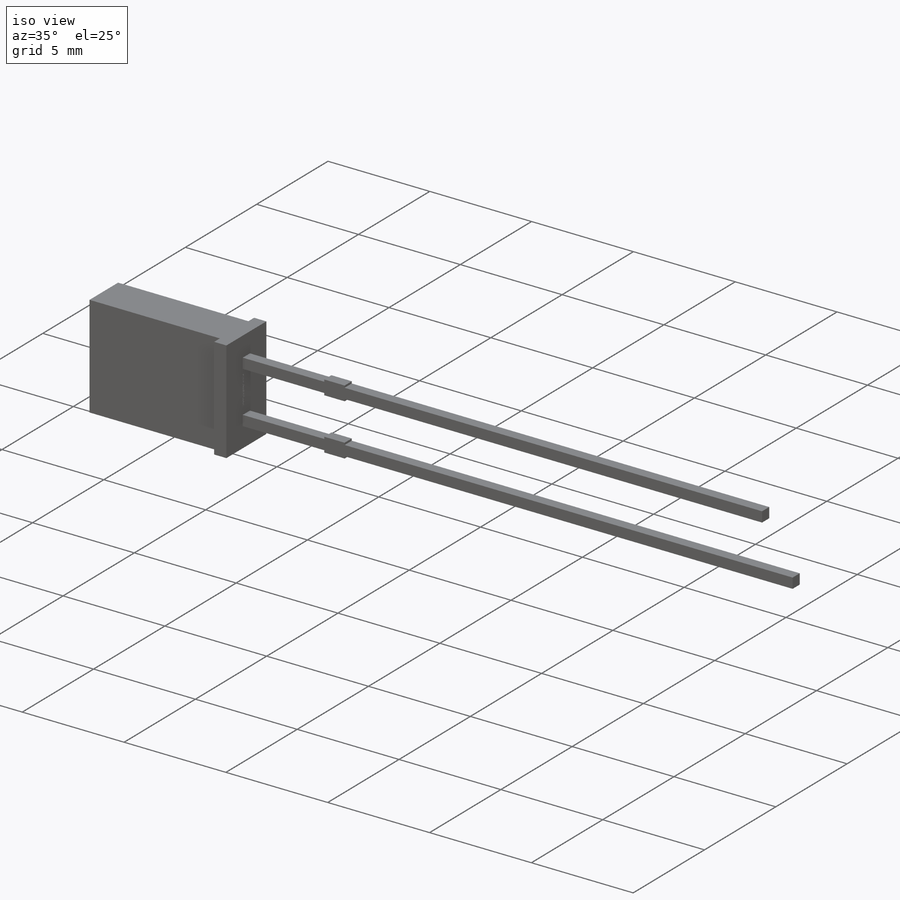
[diagram: iso view]
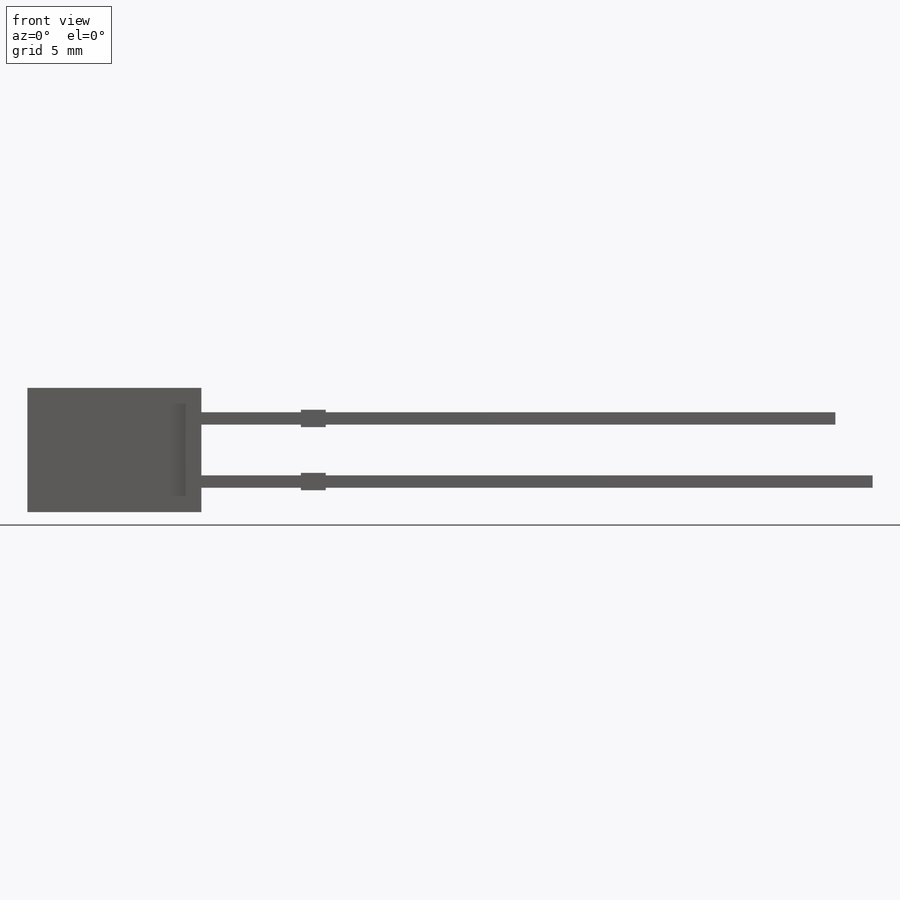
[diagram: front view]
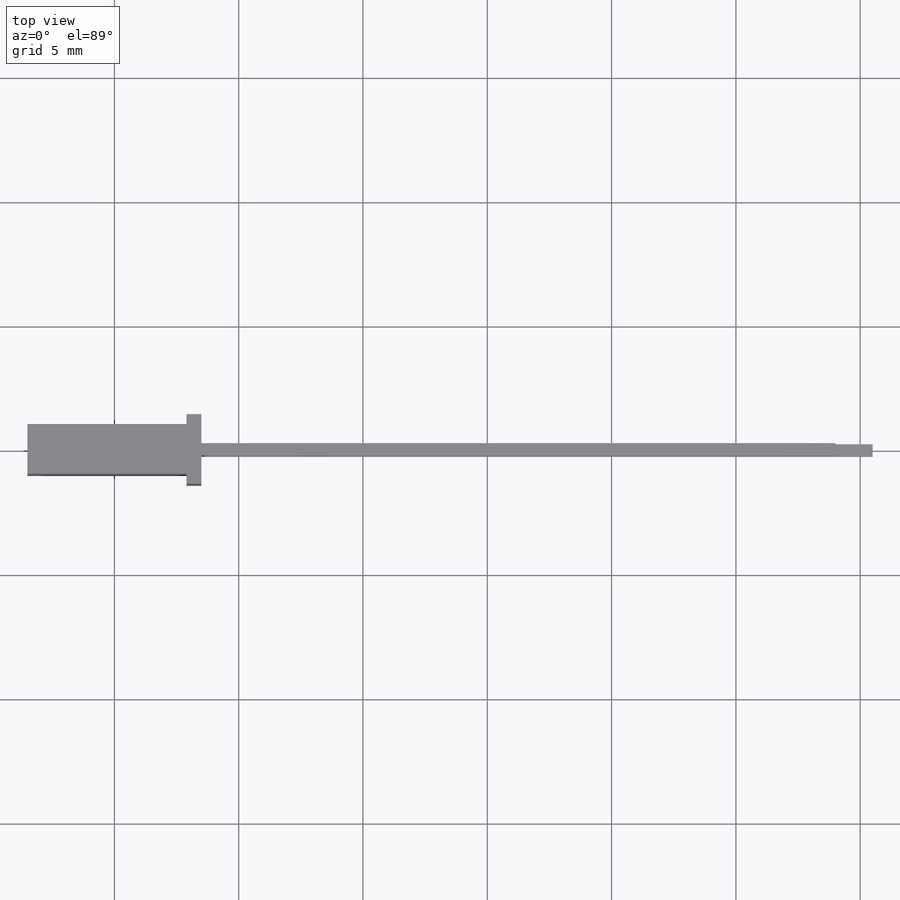
[diagram: top view]
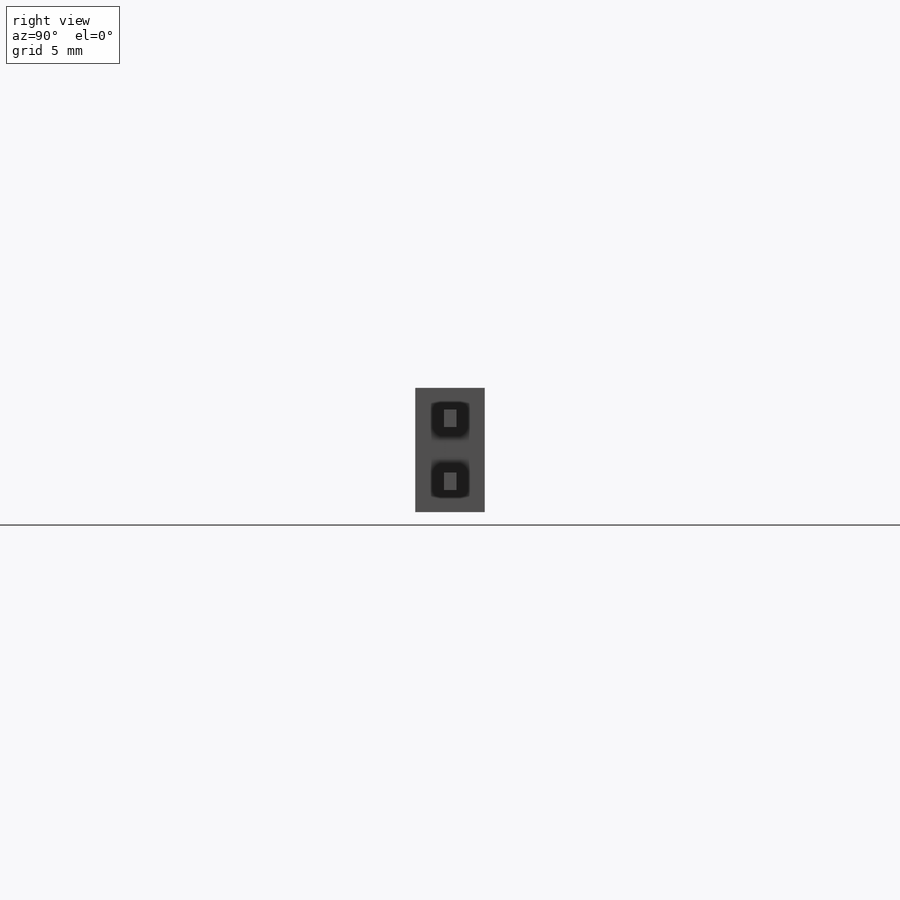
[diagram: right view]
SOLIDWORKS PART (.sldprt)
format: sldprt  version: not decoded by parser v0  size: 677,376 bytes
history: native  units: mm
features: sketch x6, extrude x5, material x1, cut_extrude x1 (+12 scaffold rows collapsed)
feature tree (25):
  scaffold x12  (default folders/planes/origin — collapsed)
  material  "Material <not specified>"
  sketch  "Sketch1"  dims[c1.D1=5.0mm c1.D2=7.0mm c1.D3=2.54mm c1.D4=27.0mm c1.D5=1.5mm c1.D6=0.5mm c1.D7=0.7mm c1.D8=1.0mm c1.D9=5.0mm c1.D10=0.6mm c2.D9=11.0mm]
  extrude  "Extrude2"  Depth=0.5mm
  extrude  "Extrude3"  [1 undecoded]
  sketch  "Sketch1<5>"  dims[D1=1.4mm]
  extrude  "Extrude4"  [1 undecoded]
  sketch  "Sketch1<6>"  dims[D1=1.4mm]
  extrude  "Extrude5"  [1 undecoded]
  sketch  "Sketch1<7>"  dims[D1=1.0mm]
  extrude  "Extrude6"  [1 undecoded]
  sketch  "Sketch1<8>"  dims[D1=1.0mm]
  sketch  "Sketch2"
  cut_extrude  "Cut-Extrude1"  Depth=0.01mm
decode coverage: 7 of 12 modeling features carry decoded parameters
note: 4 parameter values undecoded
summary: no parameter record found for 4 features
note: suppression state not decoded; provenance and decode notes live in map.json
